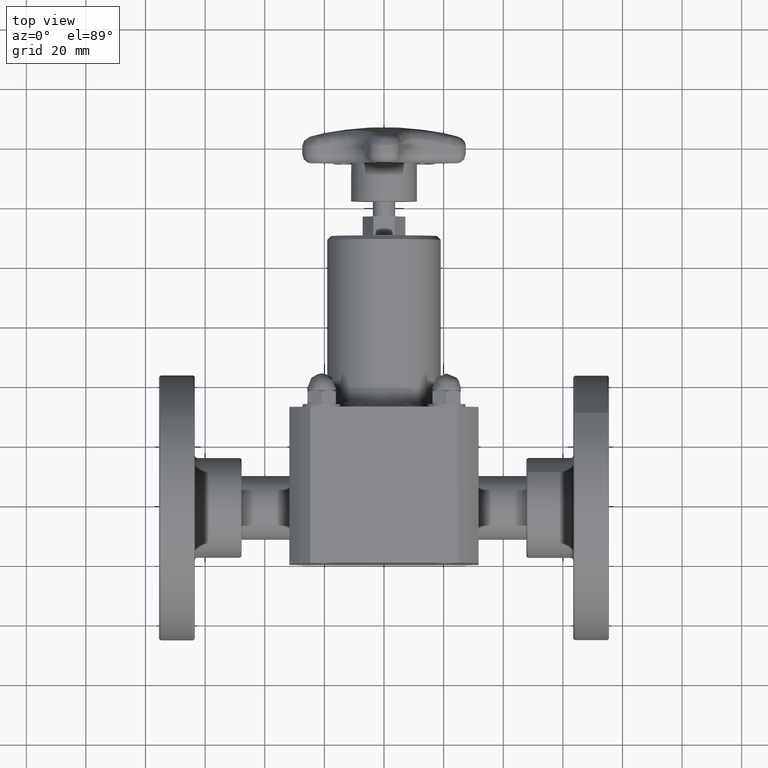
[diagram: clean part render]
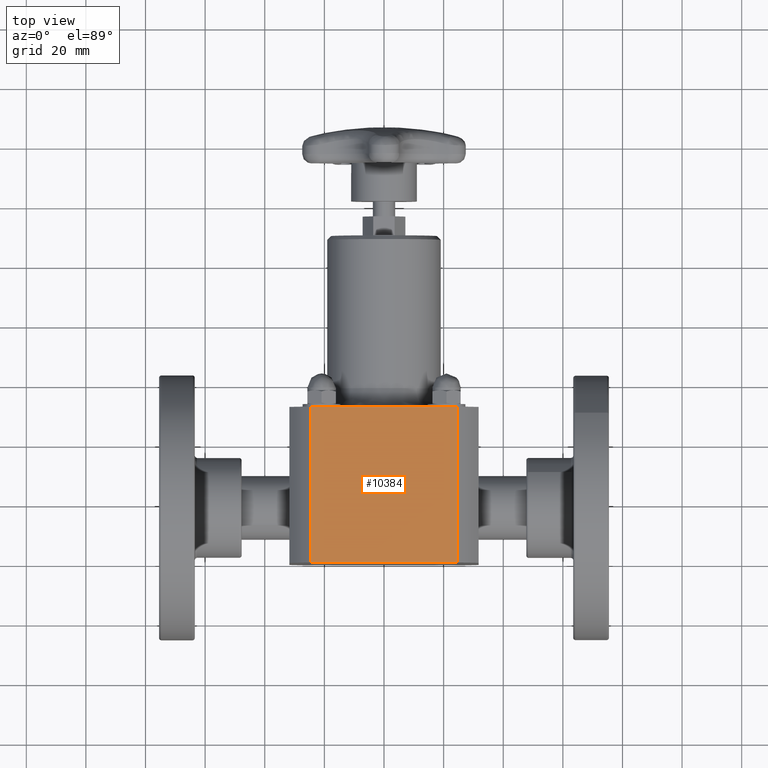
[diagram: same view with one face highlighted and labeled with its STEP entity id]
A machine part, top view. The second image highlights one B-rep face of the part: STEP entity #10384.
In plain terms, the highlighted planar face has unit normal (0, 0, 1).
Its self-contained STEP definition (entity closure, byte-faithful):
#9828=CARTESIAN_POINT('',(-0.973155306207597,2.060000000000000,1.125000000000000));
#9829=VERTEX_POINT('',#9828);
#9837=CARTESIAN_POINT('',(0.973155306207597,2.060000000000000,1.125000000000000));
#9838=VERTEX_POINT('',#9837);
#9839=CARTESIAN_POINT('',(0.973155306207597,2.060000000000000,1.125000000000000));
#9840=DIRECTION('',(-1.0,0.0,0.0));
#9841=VECTOR('',#9840,1.946310612415194);
#9842=LINE('',#9839,#9841);
#9843=EDGE_CURVE('',#9838,#9829,#9842,.T.);
#10341=CARTESIAN_POINT('',(0.973155306207596,5.625709E-045,1.125000000000000));
#10342=VERTEX_POINT('',#10341);
#10343=CARTESIAN_POINT('',(0.973155306207596,5.625709E-045,1.125000000000000));
#10344=DIRECTION('',(0.0,1.0,0.0));
#10345=VECTOR('',#10344,2.060000000000000);
#10346=LINE('',#10343,#10345);
#10347=EDGE_CURVE('',#10342,#9838,#10346,.T.);
#10361=CARTESIAN_POINT('',(0.973155306207596,5.625709E-045,1.125000000000000));
#10362=DIRECTION('',(0.0,0.0,1.0));
#10363=DIRECTION('',(1.0,0.0,0.0));
#10364=AXIS2_PLACEMENT_3D('',#10361,#10362,#10363);
#10365=PLANE('',#10364);
#10366=CARTESIAN_POINT('',(-0.973155306207596,-5.625709E-045,1.125000000000000));
#10367=VERTEX_POINT('',#10366);
#10368=CARTESIAN_POINT('',(-0.973155306207596,-5.625709E-045,1.125000000000000));
#10369=DIRECTION('',(0.0,1.0,0.0));
#10370=VECTOR('',#10369,2.060000000000000);
#10371=LINE('',#10368,#10370);
#10372=EDGE_CURVE('',#10367,#9829,#10371,.T.);
#10373=ORIENTED_EDGE('',*,*,#10372,.F.);
#10374=CARTESIAN_POINT('',(0.973155306207596,5.625709E-045,1.125000000000000));
#10375=DIRECTION('',(-1.0,0.0,0.0));
#10376=VECTOR('',#10375,1.946310612415193);
#10377=LINE('',#10374,#10376);
#10378=EDGE_CURVE('',#10342,#10367,#10377,.T.);
#10379=ORIENTED_EDGE('',*,*,#10378,.F.);
#10380=ORIENTED_EDGE('',*,*,#10347,.T.);
#10381=ORIENTED_EDGE('',*,*,#9843,.T.);
#10382=EDGE_LOOP('',(#10373,#10379,#10380,#10381));
#10383=FACE_OUTER_BOUND('',#10382,.T.);
#10384=ADVANCED_FACE('',(#10383),#10365,.T.);